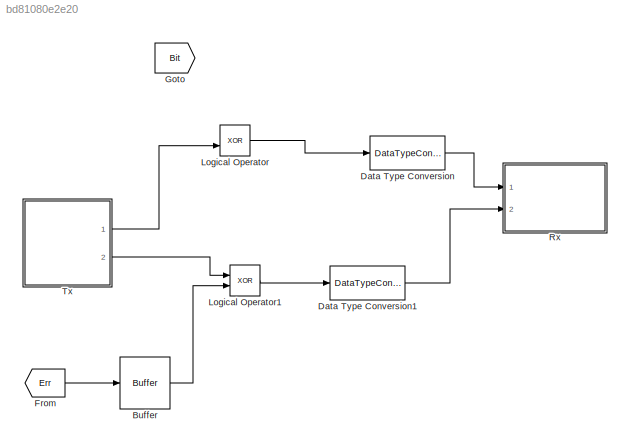
MODEL slx_bd81080e2e20
KIND model
BLOCK [Buffer] Buffer
  N = 30*20
  TreatMby1Signals = One channel
BLOCK [DataTypeConversion] Data Type Conversion
  RndMeth = Floor
  SaturateOnIntegerOverflow = off
BLOCK [DataTypeConversion] Data Type Conversion1
  RndMeth = Floor
  SaturateOnIntegerOverflow = off
BLOCK [From] From
  GotoTag = Err
BLOCK [Goto] Goto
  GotoTag = Bit
  TagVisibility = global
BLOCK [Logic] Logical Operator
  AllPortsSameDT = off
  Operator = XOR
  OutDataTypeStr = boolean
  Ports = [2, 1]
BLOCK [Logic] Logical Operator1
  AllPortsSameDT = off
  Operator = XOR
  OutDataTypeStr = boolean
  Ports = [2, 1]
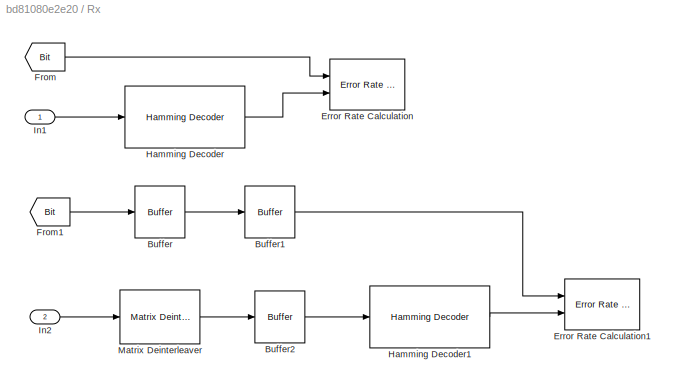
BLOCK [SubSystem] Rx
  Ports = [2]
  RequestExecContextInheritance = off
BLOCK [Buffer] Rx/Buffer
  N = 440
  TreatMby1Signals = One channel
BLOCK [Buffer] Rx/Buffer1
  N = 11
  TreatMby1Signals = One channel
BLOCK [Buffer] Rx/Buffer2
  N = 15
  TreatMby1Signals = One channel
BLOCK [Reference] Rx/Error Rate Calculation  REF=commsink2/Error Rate
Calculation
  N = 0
  PMode = Workspace
  Ports = [2]
  RsMode2 = off
  SourceBlock = commsink2/Error Rate\nCalculation
  SourceType = Error Rate Calculation
  WsName = BER2
  cp_mode = Entire frame
  maxBits = 1e6
  numErr = 100
  st_delay = 0
  stop = off
  subframe = []
BLOCK [Reference] Rx/Error Rate Calculation1  REF=commsink2/Error Rate
Calculation
  N = 0
  PMode = Workspace
  Ports = [2]
  RsMode2 = off
  SourceBlock = commsink2/Error Rate\nCalculation
  SourceType = Error Rate Calculation
  WsName = BER1
  cp_mode = Entire frame
  maxBits = 1e6
  numErr = 100
  st_delay = 440
  stop = off
  subframe = []
BLOCK [From] Rx/From
  GotoTag = Bit
BLOCK [From] Rx/From1
  GotoTag = Bit
BLOCK [Reference] Rx/Hamming Decoder  REF=commblkcod2/Hamming Decoder
  Ports = [1, 1]
  SourceBlock = commblkcod2/Hamming Decoder
  SourceType = Hamming Decoder
  k = gfprimfd(4,'min')
  n = 15
BLOCK [Reference] Rx/Hamming Decoder1  REF=commblkcod2/Hamming Decoder
  Ports = [1, 1]
  SourceBlock = commblkcod2/Hamming Decoder
  SourceType = Hamming Decoder
  k = gfprimfd(4,'min')
  n = 15
BLOCK [Inport] Rx/In1
  IconDisplay = Port number
BLOCK [Inport] Rx/In2
  IconDisplay = Port number
  Port = 2
BLOCK [Reference] Rx/Matrix Deinterleaver  REF=commblkintrlv2/Matrix
Deinterleaver
  Ncols = 20
  Nrows = 30
  Ports = [1, 1]
  SourceBlock = commblkintrlv2/Matrix\nDeinterleaver
  SourceType = Matrix Deinterleaver
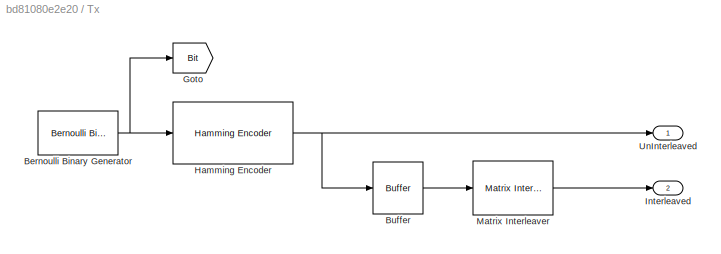
BLOCK [SubSystem] Tx
  Ports = [0, 2]
  RequestExecContextInheritance = off
BLOCK [Reference] Tx/Bernoulli Binary Generator  REF=commrandsrc2/Bernoulli Binary
Generator
  P = 0.5
  Ports = [0, 1]
  SourceBlock = commrandsrc2/Bernoulli Binary\nGenerator
  SourceType = Bernoulli Binary Generator
  Ts = 1/110000
  frameBased = on
  orient = off
  outDataType = double
  sampPerFrame = 11
  seed = 61
BLOCK [Buffer] Tx/Buffer
  N = 30*20
  TreatMby1Signals = One channel
BLOCK [Goto] Tx/Goto
  GotoTag = Bit
  TagVisibility = global
BLOCK [Reference] Tx/Hamming Encoder  REF=commblkcod2/Hamming Encoder
  Ports = [1, 1]
  SourceBlock = commblkcod2/Hamming Encoder
  SourceType = Hamming Encoder
  k = gfprimfd(4,'min')
  n = 15
BLOCK [Outport] Tx/Interleaved
  IconDisplay = Port number
  Port = 2
BLOCK [Reference] Tx/Matrix Interleaver  REF=commblkintrlv2/Matrix
Interleaver
  Ncols = 20
  Nrows = 30
  Ports = [1, 1]
  SourceBlock = commblkintrlv2/Matrix\nInterleaver
  SourceType = Matrix Interleaver
BLOCK [Outport] Tx/UnInterleaved
  IconDisplay = Port number
LINE Buffer:1 -> Logical Operator1:2
LINE Data Type Conversion1:1 -> Rx:2
LINE Data Type Conversion:1 -> Rx:1
LINE From:1 -> Buffer:1
LINE Logical Operator1:1 -> Data Type Conversion1:1
LINE Logical Operator:1 -> Data Type Conversion:1
LINE Rx/Buffer1:1 -> Rx/Error Rate Calculation1:1
LINE Rx/Buffer2:1 -> Rx/Hamming Decoder1:1
LINE Rx/Buffer:1 -> Rx/Buffer1:1
LINE Rx/From1:1 -> Rx/Buffer:1
LINE Rx/From:1 -> Rx/Error Rate Calculation:1
LINE Rx/Hamming Decoder1:1 -> Rx/Error Rate Calculation1:2
LINE Rx/Hamming Decoder:1 -> Rx/Error Rate Calculation:2
LINE Rx/In1:1 -> Rx/Hamming Decoder:1
LINE Rx/In2:1 -> Rx/Matrix Deinterleaver:1
LINE Rx/Matrix Deinterleaver:1 -> Rx/Buffer2:1
NET Tx/Bernoulli Binary Generator:1 -> Tx/Goto:1, Tx/Hamming Encoder:1
LINE Tx/Buffer:1 -> Tx/Matrix Interleaver:1
NET Tx/Hamming Encoder:1 -> Tx/Buffer:1, Tx/UnInterleaved:1
LINE Tx/Matrix Interleaver:1 -> Tx/Interleaved:1
LINE Tx:1 -> Logical Operator:2
LINE Tx:2 -> Logical Operator1:1
note: NET lines group one-source signal fan-out (src -> all destinations, sorted); 1:1 wires keep LINE
